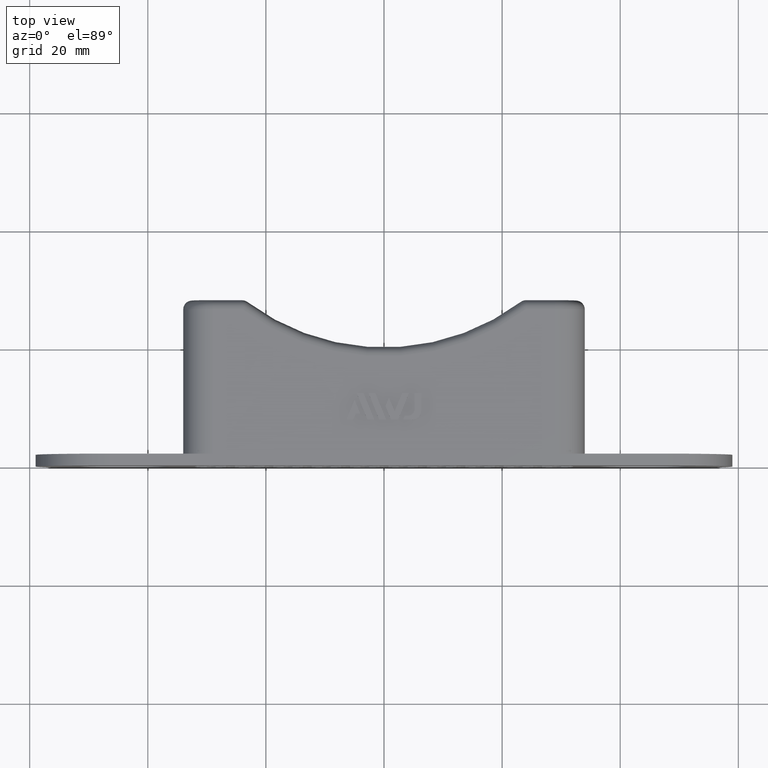
[diagram: clean part render]
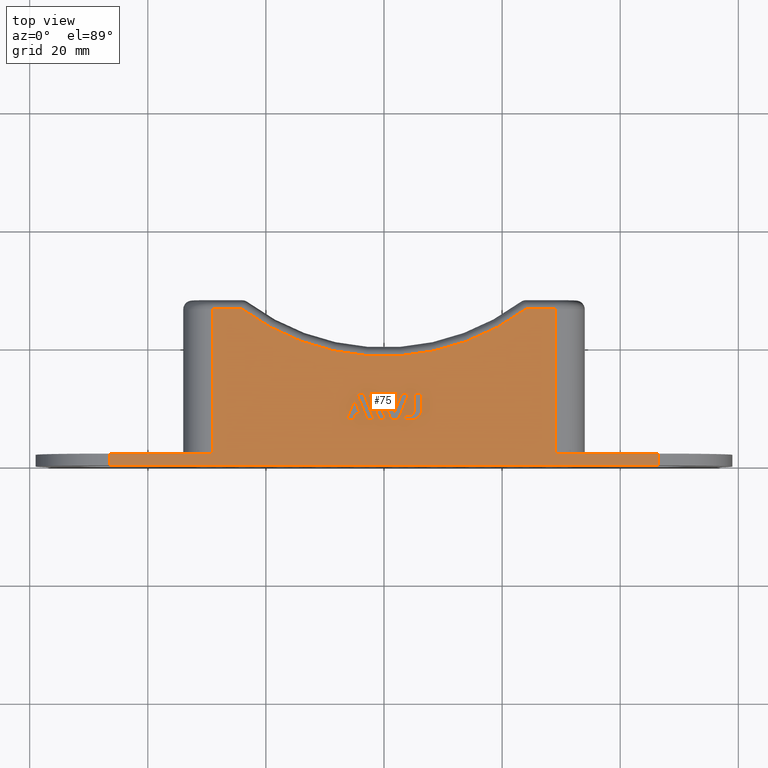
[diagram: same view with one face highlighted and labeled with its STEP entity id]
A machine part, top view. The second image highlights one B-rep face of the part: STEP entity #75.
In plain terms, the highlighted planar face has unit normal (0, 0, -1).
Its self-contained STEP definition (entity closure, byte-faithful):
#75 = ADVANCED_FACE( '', ( #488, #489, #490, #491, #492, #493 ), #494, .F. );
#488 = FACE_BOUND( '', #1370, .T. );
#489 = FACE_BOUND( '', #1371, .T. );
#490 = FACE_OUTER_BOUND( '', #1372, .T. );
#491 = FACE_BOUND( '', #1373, .T. );
#492 = FACE_BOUND( '', #1374, .T. );
#493 = FACE_BOUND( '', #1375, .T. );
#494 = PLANE( '', #1376 );
#1370 = EDGE_LOOP( '', ( #2252, #2253, #2254, #2255, #2256, #2257, #2258 ) );
#1371 = EDGE_LOOP( '', ( #2259, #2260, #2261, #2262 ) );
#1372 = EDGE_LOOP( '', ( #2263, #2264, #2265, #2266, #2267, #2268, #2269, #2270, #2271, #2272 ) );
#1373 = EDGE_LOOP( '', ( #2273, #2274, #2275, #2276, #2277 ) );
#1374 = EDGE_LOOP( '', ( #2278, #2279, #2280, #2281 ) );
#1375 = EDGE_LOOP( '', ( #2282, #2283, #2284, #2285, #2286, #2287, #2288, #2289 ) );
#1376 = AXIS2_PLACEMENT_3D( '', #2290, #2291, #2292 );
#2252 = ORIENTED_EDGE( '', *, *, #5584, .F. );
#2253 = ORIENTED_EDGE( '', *, *, #5585, .F. );
#2254 = ORIENTED_EDGE( '', *, *, #5586, .F. );
#2255 = ORIENTED_EDGE( '', *, *, #5587, .F. );
#2256 = ORIENTED_EDGE( '', *, *, #5588, .F. );
#2257 = ORIENTED_EDGE( '', *, *, #5589, .F. );
#2258 = ORIENTED_EDGE( '', *, *, #5590, .F. );
#2259 = ORIENTED_EDGE( '', *, *, #5591, .F. );
#2260 = ORIENTED_EDGE( '', *, *, #5592, .F. );
#2261 = ORIENTED_EDGE( '', *, *, #5593, .F. );
#2262 = ORIENTED_EDGE( '', *, *, #5594, .F. );
#2263 = ORIENTED_EDGE( '', *, *, #5595, .T. );
#2264 = ORIENTED_EDGE( '', *, *, #5596, .T. );
#2265 = ORIENTED_EDGE( '', *, *, #5597, .T. );
#2266 = ORIENTED_EDGE( '', *, *, #5598, .T. );
#2267 = ORIENTED_EDGE( '', *, *, #5599, .T. );
#2268 = ORIENTED_EDGE( '', *, *, #5600, .T. );
#2269 = ORIENTED_EDGE( '', *, *, #5601, .T. );
#2270 = ORIENTED_EDGE( '', *, *, #5602, .T. );
#2271 = ORIENTED_EDGE( '', *, *, #5603, .T. );
#2272 = ORIENTED_EDGE( '', *, *, #5604, .T. );
#2273 = ORIENTED_EDGE( '', *, *, #5605, .F. );
#2274 = ORIENTED_EDGE( '', *, *, #5606, .F. );
#2275 = ORIENTED_EDGE( '', *, *, #5607, .F. );
#2276 = ORIENTED_EDGE( '', *, *, #5608, .F. );
#2277 = ORIENTED_EDGE( '', *, *, #5609, .F. );
#2278 = ORIENTED_EDGE( '', *, *, #5610, .F. );
#2279 = ORIENTED_EDGE( '', *, *, #5611, .F. );
#2280 = ORIENTED_EDGE( '', *, *, #5612, .F. );
#2281 = ORIENTED_EDGE( '', *, *, #5613, .F. );
#2282 = ORIENTED_EDGE( '', *, *, #5614, .F. );
#2283 = ORIENTED_EDGE( '', *, *, #5615, .F. );
#2284 = ORIENTED_EDGE( '', *, *, #5616, .F. );
#2285 = ORIENTED_EDGE( '', *, *, #5617, .F. );
#2286 = ORIENTED_EDGE( '', *, *, #5618, .F. );
#2287 = ORIENTED_EDGE( '', *, *, #5619, .F. );
#2288 = ORIENTED_EDGE( '', *, *, #5620, .F. );
#2289 = ORIENTED_EDGE( '', *, *, #5621, .F. );
#2290 = CARTESIAN_POINT( '', ( 0.000000000000000, 58.6500000000000, 12.5000000000000 ) );
#2291 = DIRECTION( '', ( 0.000000000000000, 0.000000000000000, -1.00000000000000 ) );
#2292 = DIRECTION( '', ( 0.000000000000000, 1.00000000000000, 0.000000000000000 ) );
#5584 = EDGE_CURVE( '', #6632, #6633, #6634, .T. );
#5585 = EDGE_CURVE( '', #6635, #6632, #6636, .T. );
#5586 = EDGE_CURVE( '', #6637, #6635, #6638, .T. );
#5587 = EDGE_CURVE( '', #6639, #6637, #6640, .T. );
#5588 = EDGE_CURVE( '', #6641, #6639, #6642, .T. );
#5589 = EDGE_CURVE( '', #6643, #6641, #6644, .T. );
#5590 = EDGE_CURVE( '', #6633, #6643, #6645, .T. );
#5591 = EDGE_CURVE( '', #6646, #6647, #6648, .T. );
#5592 = EDGE_CURVE( '', #6649, #6646, #6650, .T. );
#5593 = EDGE_CURVE( '', #6651, #6649, #6652, .T. );
#5594 = EDGE_CURVE( '', #6647, #6651, #6653, .T. );
#5595 = EDGE_CURVE( '', #6654, #6655, #6656, .T. );
#5596 = EDGE_CURVE( '', #6655, #6657, #6658, .T. );
#5597 = EDGE_CURVE( '', #6657, #6659, #6660, .T. );
#5598 = EDGE_CURVE( '', #6659, #6661, #6662, .T. );
#5599 = EDGE_CURVE( '', #6661, #6663, #6664, .T. );
#5600 = EDGE_CURVE( '', #6663, #6665, #6666, .T. );
#5601 = EDGE_CURVE( '', #6665, #6667, #6668, .T. );
#5602 = EDGE_CURVE( '', #6667, #6669, #6670, .T. );
#5603 = EDGE_CURVE( '', #6669, #6671, #6672, .T. );
#5604 = EDGE_CURVE( '', #6671, #6654, #6673, .T. );
#5605 = EDGE_CURVE( '', #6674, #6675, #6676, .T. );
#5606 = EDGE_CURVE( '', #6677, #6674, #6678, .T. );
#5607 = EDGE_CURVE( '', #6679, #6677, #6680, .T. );
#5608 = EDGE_CURVE( '', #6681, #6679, #6682, .T. );
#5609 = EDGE_CURVE( '', #6675, #6681, #6683, .T. );
#5610 = EDGE_CURVE( '', #6684, #6685, #6686, .T. );
#5611 = EDGE_CURVE( '', #6687, #6684, #6688, .T. );
#5612 = EDGE_CURVE( '', #6689, #6687, #6690, .T. );
#5613 = EDGE_CURVE( '', #6685, #6689, #6691, .T. );
#5614 = EDGE_CURVE( '', #6692, #6693, #6694, .T. );
#5615 = EDGE_CURVE( '', #6695, #6692, #6696, .T. );
#5616 = EDGE_CURVE( '', #6697, #6695, #6698, .T. );
#5617 = EDGE_CURVE( '', #6699, #6697, #6700, .T. );
#5618 = EDGE_CURVE( '', #6701, #6699, #6702, .T. );
#5619 = EDGE_CURVE( '', #6703, #6701, #6704, .T. );
#5620 = EDGE_CURVE( '', #6705, #6703, #6706, .T. );
#5621 = EDGE_CURVE( '', #6693, #6705, #6707, .T. );
#6632 = VERTEX_POINT( '', #8372 );
#6633 = VERTEX_POINT( '', #8373 );
#6634 = LINE( '', #8374, #8375 );
#6635 = VERTEX_POINT( '', #8376 );
#6636 = LINE( '', #8377, #8378 );
#6637 = VERTEX_POINT( '', #8379 );
#6638 = LINE( '', #8380, #8381 );
#6639 = VERTEX_POINT( '', #8382 );
#6640 = LINE( '', #8383, #8384 );
#6641 = VERTEX_POINT( '', #8385 );
#6642 = LINE( '', #8386, #8387 );
#6643 = VERTEX_POINT( '', #8388 );
#6644 = LINE( '', #8389, #8390 );
#6645 = LINE( '', #8391, #8392 );
#6646 = VERTEX_POINT( '', #8393 );
#6647 = VERTEX_POINT( '', #8394 );
#6648 = LINE( '', #8395, #8396 );
#6649 = VERTEX_POINT( '', #8397 );
#6650 = LINE( '', #8398, #8399 );
#6651 = VERTEX_POINT( '', #8400 );
#6652 = LINE( '', #8401, #8402 );
#6653 = LINE( '', #8403, #8404 );
#6654 = VERTEX_POINT( '', #8405 );
#6655 = VERTEX_POINT( '', #8406 );
#6656 = CIRCLE( '', #8407, 40.1500000000000 );
#6657 = VERTEX_POINT( '', #8408 );
#6658 = LINE( '', #8409, #8410 );
#6659 = VERTEX_POINT( '', #8411 );
#6660 = LINE( '', #8412, #8413 );
#6661 = VERTEX_POINT( '', #8414 );
#6662 = LINE( '', #8415, #8416 );
#6663 = VERTEX_POINT( '', #8417 );
#6664 = LINE( '', #8418, #8419 );
#6665 = VERTEX_POINT( '', #8420 );
#6666 = LINE( '', #8421, #8422 );
#6667 = VERTEX_POINT( '', #8423 );
#6668 = LINE( '', #8424, #8425 );
#6669 = VERTEX_POINT( '', #8426 );
#6670 = LINE( '', #8427, #8428 );
#6671 = VERTEX_POINT( '', #8429 );
#6672 = LINE( '', #8430, #8431 );
#6673 = LINE( '', #8432, #8433 );
#6674 = VERTEX_POINT( '', #8434 );
#6675 = VERTEX_POINT( '', #8435 );
#6676 = LINE( '', #8436, #8437 );
#6677 = VERTEX_POINT( '', #8438 );
#6678 = LINE( '', #8439, #8440 );
#6679 = VERTEX_POINT( '', #8441 );
#6680 = LINE( '', #8442, #8443 );
#6681 = VERTEX_POINT( '', #8444 );
#6682 = LINE( '', #8445, #8446 );
#6683 = LINE( '', #8447, #8448 );
#6684 = VERTEX_POINT( '', #8449 );
#6685 = VERTEX_POINT( '', #8450 );
#6686 = LINE( '', #8451, #8452 );
#6687 = VERTEX_POINT( '', #8453 );
#6688 = LINE( '', #8454, #8455 );
#6689 = VERTEX_POINT( '', #8456 );
#6690 = LINE( '', #8457, #8458 );
#6691 = LINE( '', #8459, #8460 );
#6692 = VERTEX_POINT( '', #8461 );
#6693 = VERTEX_POINT( '', #8462 );
#6694 = CIRCLE( '', #8463, 1.50000000000000 );
#6695 = VERTEX_POINT( '', #8464 );
#6696 = LINE( '', #8465, #8466 );
#6697 = VERTEX_POINT( '', #8467 );
#6698 = LINE( '', #8468, #8469 );
#6699 = VERTEX_POINT( '', #8470 );
#6700 = LINE( '', #8471, #8472 );
#6701 = VERTEX_POINT( '', #8473 );
#6702 = CIRCLE( '', #8474, 0.999999999999997 );
#6703 = VERTEX_POINT( '', #8475 );
#6704 = LINE( '', #8476, #8477 );
#6705 = VERTEX_POINT( '', #8478 );
#6706 = LINE( '', #8479, #8480 );
#6707 = LINE( '', #8481, #8482 );
#8372 = CARTESIAN_POINT( '', ( 2.40489711829795, 7.75000000000000, 12.5000000000000 ) );
#8373 = CARTESIAN_POINT( '', ( 4.22159390166011, 12.2467077130809, 12.5000000000000 ) );
#8374 = CARTESIAN_POINT( '', ( 2.40489711829795, 7.75000000000000, 12.5000000000000 ) );
#8375 = VECTOR( '', #10950, 1000.00000000000 );
#8376 = CARTESIAN_POINT( '', ( 1.17656065381540, 7.75000000000000, 12.5000000000000 ) );
#8377 = CARTESIAN_POINT( '', ( 1.17656065381540, 7.75000000000000, 12.5000000000000 ) );
#8378 = VECTOR( '', #10951, 1000.00000000000 );
#8379 = CARTESIAN_POINT( '', ( 0.250796616378179, 10.0409463051131, 12.5000000000000 ) );
#8380 = CARTESIAN_POINT( '', ( 0.250796616378178, 10.0409463051131, 12.5000000000000 ) );
#8381 = VECTOR( '', #10952, 1000.00000000000 );
#8382 = CARTESIAN_POINT( '', ( 0.831793978898428, 11.4792171844869, 12.5000000000000 ) );
#8383 = CARTESIAN_POINT( '', ( 0.831793978898429, 11.4792171844869, 12.5000000000000 ) );
#8384 = VECTOR( '', #10953, 1000.00000000000 );
#8385 = CARTESIAN_POINT( '', ( 1.79060116130350, 9.10619645562919, 12.5000000000000 ) );
#8386 = CARTESIAN_POINT( '', ( 1.79060116130350, 9.10619645562919, 12.5000000000000 ) );
#8387 = VECTOR( '', #10954, 1000.00000000000 );
#8388 = CARTESIAN_POINT( '', ( 3.05959917661961, 12.2467077130809, 12.5000000000000 ) );
#8389 = CARTESIAN_POINT( '', ( 3.05959917661961, 12.2467077130809, 12.5000000000000 ) );
#8390 = VECTOR( '', #10955, 1000.00000000000 );
#8391 = CARTESIAN_POINT( '', ( 4.22159390166011, 12.2467077130809, 12.5000000000000 ) );
#8392 = VECTOR( '', #10956, 1000.00000000000 );
#8393 = CARTESIAN_POINT( '', ( -1.65762156620353, 7.75000000000000, 12.5000000000000 ) );
#8394 = CARTESIAN_POINT( '', ( -3.47460385195514, 12.2467077130809, 12.5000000000000 ) );
#8395 = CARTESIAN_POINT( '', ( -1.65762156620353, 7.75000000000000, 12.5000000000000 ) );
#8396 = VECTOR( '', #10957, 1000.00000000000 );
#8397 = CARTESIAN_POINT( '', ( -2.81951861937395, 7.75000000000000, 12.5000000000000 ) );
#8398 = CARTESIAN_POINT( '', ( -2.81951861937395, 7.75000000000000, 12.5000000000000 ) );
#8399 = VECTOR( '', #10958, 1000.00000000000 );
#8400 = CARTESIAN_POINT( '', ( -4.63624545561922, 12.2467077130809, 12.5000000000000 ) );
#8401 = CARTESIAN_POINT( '', ( -4.63624545561922, 12.2467077130809, 12.5000000000000 ) );
#8402 = VECTOR( '', #10959, 1000.00000000000 );
#8403 = CARTESIAN_POINT( '', ( -3.47460385195514, 12.2467077130809, 12.5000000000000 ) );
#8404 = VECTOR( '', #10960, 1000.00000000000 );
#8405 = CARTESIAN_POINT( '', ( 24.0499480248919, 26.5000000000000, 12.5000000000000 ) );
#8406 = CARTESIAN_POINT( '', ( -24.0499480248919, 26.5000000000000, 12.5000000000000 ) );
#8407 = AXIS2_PLACEMENT_3D( '', #10961, #10962, #10963 );
#8408 = CARTESIAN_POINT( '', ( -29.0000000000000, 26.5000000000000, 12.5000000000000 ) );
#8409 = CARTESIAN_POINT( '', ( -29.0000000000000, 26.5000000000000, 12.5000000000000 ) );
#8410 = VECTOR( '', #10964, 1000.00000000000 );
#8411 = CARTESIAN_POINT( '', ( -29.0000000000000, 2.00000000000000, 12.5000000000000 ) );
#8412 = CARTESIAN_POINT( '', ( -29.0000000000000, 2.00000000000001, 12.5000000000000 ) );
#8413 = VECTOR( '', #10965, 1000.00000000000 );
#8414 = CARTESIAN_POINT( '', ( -46.5000000000000, 2.00000000000000, 12.5000000000000 ) );
#8415 = CARTESIAN_POINT( '', ( -34.0000000000000, 2.00000000000000, 12.5000000000000 ) );
#8416 = VECTOR( '', #10966, 1000.00000000000 );
#8417 = CARTESIAN_POINT( '', ( -46.5000000000000, 0.000000000000000, 12.5000000000000 ) );
#8418 = CARTESIAN_POINT( '', ( -46.5000000000000, 0.000000000000000, 12.5000000000000 ) );
#8419 = VECTOR( '', #10967, 1000.00000000000 );
#8420 = CARTESIAN_POINT( '', ( 46.5000000000000, 0.000000000000000, 12.5000000000000 ) );
#8421 = CARTESIAN_POINT( '', ( -59.0000000000000, 0.000000000000000, 12.5000000000000 ) );
#8422 = VECTOR( '', #10968, 1000.00000000000 );
#8423 = CARTESIAN_POINT( '', ( 46.5000000000000, 2.00000000000000, 12.5000000000000 ) );
#8424 = CARTESIAN_POINT( '', ( 46.5000000000000, 2.00000000000000, 12.5000000000000 ) );
#8425 = VECTOR( '', #10969, 1000.00000000000 );
#8426 = CARTESIAN_POINT( '', ( 29.0000000000000, 2.00000000000000, 12.5000000000000 ) );
#8427 = CARTESIAN_POINT( '', ( 59.0000000000000, 2.00000000000000, 12.5000000000000 ) );
#8428 = VECTOR( '', #10970, 1000.00000000000 );
#8429 = CARTESIAN_POINT( '', ( 29.0000000000000, 26.5000000000000, 12.5000000000000 ) );
#8430 = CARTESIAN_POINT( '', ( 29.0000000000000, 28.0000000000000, 12.5000000000000 ) );
#8431 = VECTOR( '', #10971, 1000.00000000000 );
#8432 = CARTESIAN_POINT( '', ( 23.5457002444183, 26.5000000000000, 12.5000000000000 ) );
#8433 = VECTOR( '', #10972, 1000.00000000000 );
#8434 = CARTESIAN_POINT( '', ( -5.19199839633592, 7.75000000000000, 12.5000000000000 ) );
#8435 = CARTESIAN_POINT( '', ( -4.77208448722876, 8.78856753415103, 12.5000000000000 ) );
#8436 = CARTESIAN_POINT( '', ( -5.19199839633592, 7.75000000000000, 12.5000000000000 ) );
#8437 = VECTOR( '', #10973, 1000.00000000000 );
#8438 = CARTESIAN_POINT( '', ( -6.35364000000000, 7.75000000000000, 12.5000000000000 ) );
#8439 = CARTESIAN_POINT( '', ( -6.35364000000000, 7.75000000000000, 12.5000000000000 ) );
#8440 = VECTOR( '', #10974, 1000.00000000000 );
#8441 = CARTESIAN_POINT( '', ( -4.99163582471184, 11.1215127433957, 12.5000000000000 ) );
#8442 = CARTESIAN_POINT( '', ( -4.99163582471184, 11.1215127433957, 12.5000000000000 ) );
#8443 = VECTOR( '', #10975, 1000.00000000000 );
#8444 = CARTESIAN_POINT( '', ( -4.04950047920620, 8.78856753415103, 12.5000000000000 ) );
#8445 = CARTESIAN_POINT( '', ( -4.04950047920620, 8.78856753415103, 12.5000000000000 ) );
#8446 = VECTOR( '', #10976, 1000.00000000000 );
#8447 = CARTESIAN_POINT( '', ( -4.77208448722876, 8.78856753415103, 12.5000000000000 ) );
#8448 = VECTOR( '', #10977, 1000.00000000000 );
#8449 = CARTESIAN_POINT( '', ( 0.340474419546954, 7.75000000000000, 12.5000000000000 ) );
#8450 = CARTESIAN_POINT( '', ( -1.47650786620465, 12.2467077130809, 12.5000000000000 ) );
#8451 = CARTESIAN_POINT( '', ( 0.340474419546954, 7.75000000000000, 12.5000000000000 ) );
#8452 = VECTOR( '', #10978, 1000.00000000000 );
#8453 = CARTESIAN_POINT( '', ( -0.821505279051991, 7.75000000000000, 12.5000000000000 ) );
#8454 = CARTESIAN_POINT( '', ( -0.821505279051992, 7.75000000000000, 12.5000000000000 ) );
#8455 = VECTOR( '', #10979, 1000.00000000000 );
#8456 = CARTESIAN_POINT( '', ( -2.63848756480360, 12.2467077130809, 12.5000000000000 ) );
#8457 = CARTESIAN_POINT( '', ( -2.63848756480360, 12.2467077130809, 12.5000000000000 ) );
#8458 = VECTOR( '', #10980, 1000.00000000000 );
#8459 = CARTESIAN_POINT( '', ( -1.47650786620465, 12.2467077130809, 12.5000000000000 ) );
#8460 = VECTOR( '', #10981, 1000.00000000000 );
#8461 = CARTESIAN_POINT( '', ( 4.81907477182051, 7.75000000000000, 12.5000000000000 ) );
#8462 = CARTESIAN_POINT( '', ( 6.31907477182050, 9.25000000000000, 12.5000000000000 ) );
#8463 = AXIS2_PLACEMENT_3D( '', #10982, #10983, #10984 );
#8464 = CARTESIAN_POINT( '', ( 3.24098335256638, 7.75000000000000, 12.5000000000000 ) );
#8465 = CARTESIAN_POINT( '', ( 3.24098335256638, 7.75000000000000, 12.5000000000000 ) );
#8466 = VECTOR( '', #10985, 1000.00000000000 );
#8467 = CARTESIAN_POINT( '', ( 3.50517861036021, 8.40390620930045, 12.5000000000000 ) );
#8468 = CARTESIAN_POINT( '', ( 3.50517861036022, 8.40390620930045, 12.5000000000000 ) );
#8469 = VECTOR( '', #10986, 1000.00000000000 );
#8470 = CARTESIAN_POINT( '', ( 4.14390185782692, 8.40390620930043, 12.5000000000000 ) );
#8471 = CARTESIAN_POINT( '', ( 4.14390185782692, 8.40390620930045, 12.5000000000000 ) );
#8472 = VECTOR( '', #10987, 1000.00000000000 );
#8473 = CARTESIAN_POINT( '', ( 5.14390185782692, 9.40390620930043, 12.5000000000000 ) );
#8474 = AXIS2_PLACEMENT_3D( '', #10988, #10989, #10990 );
#8475 = CARTESIAN_POINT( '', ( 5.14390185782692, 12.2467077130809, 12.5000000000000 ) );
#8476 = CARTESIAN_POINT( '', ( 5.14390185782692, 12.2467077130809, 12.5000000000000 ) );
#8477 = VECTOR( '', #10991, 1000.00000000000 );
#8478 = CARTESIAN_POINT( '', ( 6.31907477182050, 12.2467077130809, 12.5000000000000 ) );
#8479 = CARTESIAN_POINT( '', ( 6.31907477182050, 12.2467077130809, 12.5000000000000 ) );
#8480 = VECTOR( '', #10992, 1000.00000000000 );
#8481 = CARTESIAN_POINT( '', ( 6.31907477182050, 9.25000000000000, 12.5000000000000 ) );
#8482 = VECTOR( '', #10993, 1000.00000000000 );
#10950 = DIRECTION( '', ( 0.374590451773198, 0.927190376050330, 0.000000000000000 ) );
#10951 = DIRECTION( '', ( 1.00000000000000, 0.000000000000000, 0.000000000000000 ) );
#10952 = DIRECTION( '', ( 0.374662832411421, -0.927161130553612, 0.000000000000000 ) );
#10953 = DIRECTION( '', ( -0.374550179126525, -0.927206645422846, 0.000000000000000 ) );
#10954 = DIRECTION( '', ( -0.374621565025663, 0.927177805503196, 0.000000000000000 ) );
#10955 = DIRECTION( '', ( -0.374644435760503, -0.927168564368796, 0.000000000000000 ) );
#10956 = DIRECTION( '', ( -1.00000000000000, 0.000000000000000, 0.000000000000000 ) );
#10957 = DIRECTION( '', ( -0.374641058409019, 0.927169929060563, 0.000000000000000 ) );
#10958 = DIRECTION( '', ( 1.00000000000000, 0.000000000000000, 0.000000000000000 ) );
#10959 = DIRECTION( '', ( 0.374595778945159, -0.927188223823226, 0.000000000000000 ) );
#10960 = DIRECTION( '', ( -1.00000000000000, 0.000000000000000, 0.000000000000000 ) );
#10961 = CARTESIAN_POINT( '', ( 0.000000000000000, 58.6500000000000, 12.5000000000000 ) );
#10962 = DIRECTION( '', ( 0.000000000000000, 0.000000000000000, -1.00000000000000 ) );
#10963 = DIRECTION( '', ( -1.00000000000000, 0.000000000000000, 0.000000000000000 ) );
#10964 = DIRECTION( '', ( -1.00000000000000, 0.000000000000000, 0.000000000000000 ) );
#10965 = DIRECTION( '', ( -6.93889390390723E-017, -1.00000000000000, 0.000000000000000 ) );
#10966 = DIRECTION( '', ( -1.00000000000000, 0.000000000000000, 0.000000000000000 ) );
#10967 = DIRECTION( '', ( -6.93889390390723E-017, -1.00000000000000, 0.000000000000000 ) );
#10968 = DIRECTION( '', ( 1.00000000000000, 0.000000000000000, 0.000000000000000 ) );
#10969 = DIRECTION( '', ( 6.93889390390723E-017, 1.00000000000000, 0.000000000000000 ) );
#10970 = DIRECTION( '', ( -1.00000000000000, 0.000000000000000, 0.000000000000000 ) );
#10971 = DIRECTION( '', ( 6.93889390390723E-017, 1.00000000000000, 0.000000000000000 ) );
#10972 = DIRECTION( '', ( -1.00000000000000, 0.000000000000000, 0.000000000000000 ) );
#10973 = DIRECTION( '', ( 0.374840934415178, 0.927089140205383, 0.000000000000000 ) );
#10974 = DIRECTION( '', ( 1.00000000000000, 5.55111512312578E-017, 0.000000000000000 ) );
#10975 = DIRECTION( '', ( -0.374565126786346, -0.927200607094025, 0.000000000000000 ) );
#10976 = DIRECTION( '', ( -0.374457717202846, 0.927243990558706, 0.000000000000000 ) );
#10977 = DIRECTION( '', ( 1.00000000000000, 0.000000000000000, 0.000000000000000 ) );
#10978 = DIRECTION( '', ( -0.374641058409019, 0.927169929060563, 0.000000000000000 ) );
#10979 = DIRECTION( '', ( 1.00000000000000, -2.22044604925031E-016, 0.000000000000000 ) );
#10980 = DIRECTION( '', ( 0.374641058409019, -0.927169929060563, 0.000000000000000 ) );
#10981 = DIRECTION( '', ( -1.00000000000000, 2.22044604925031E-016, 0.000000000000000 ) );
#10982 = CARTESIAN_POINT( '', ( 4.81907477182050, 9.25000000000000, 12.5000000000000 ) );
#10983 = DIRECTION( '', ( 0.000000000000000, 0.000000000000000, 1.00000000000000 ) );
#10984 = DIRECTION( '', ( 0.000000000000000, -1.00000000000000, 0.000000000000000 ) );
#10985 = DIRECTION( '', ( 1.00000000000000, 0.000000000000000, 0.000000000000000 ) );
#10986 = DIRECTION( '', ( -0.374606593415912, -0.927183854566787, 0.000000000000000 ) );
#10987 = DIRECTION( '', ( -1.00000000000000, 0.000000000000000, 0.000000000000000 ) );
#10988 = CARTESIAN_POINT( '', ( 4.14390185782692, 9.40390620930043, 12.5000000000000 ) );
#10989 = DIRECTION( '', ( 0.000000000000000, 0.000000000000000, -1.00000000000000 ) );
#10990 = DIRECTION( '', ( 1.00000000000000, 0.000000000000000, 0.000000000000000 ) );
#10991 = DIRECTION( '', ( -6.07153216591882E-017, -1.00000000000000, 0.000000000000000 ) );
#10992 = DIRECTION( '', ( -1.00000000000000, 0.000000000000000, 0.000000000000000 ) );
#10993 = DIRECTION( '', ( 6.07153216591882E-017, 1.00000000000000, 0.000000000000000 ) );